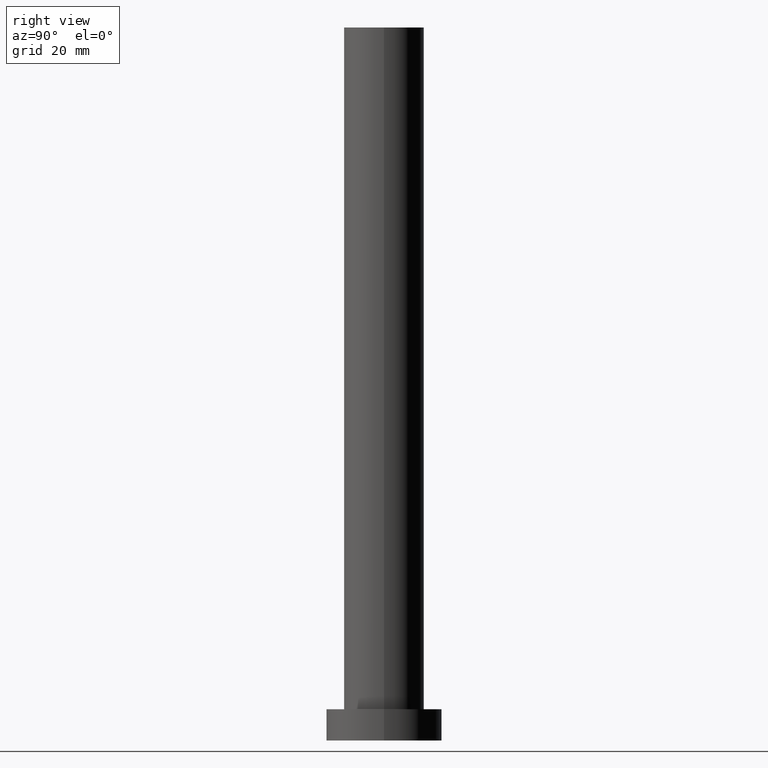
[diagram: clean part render]
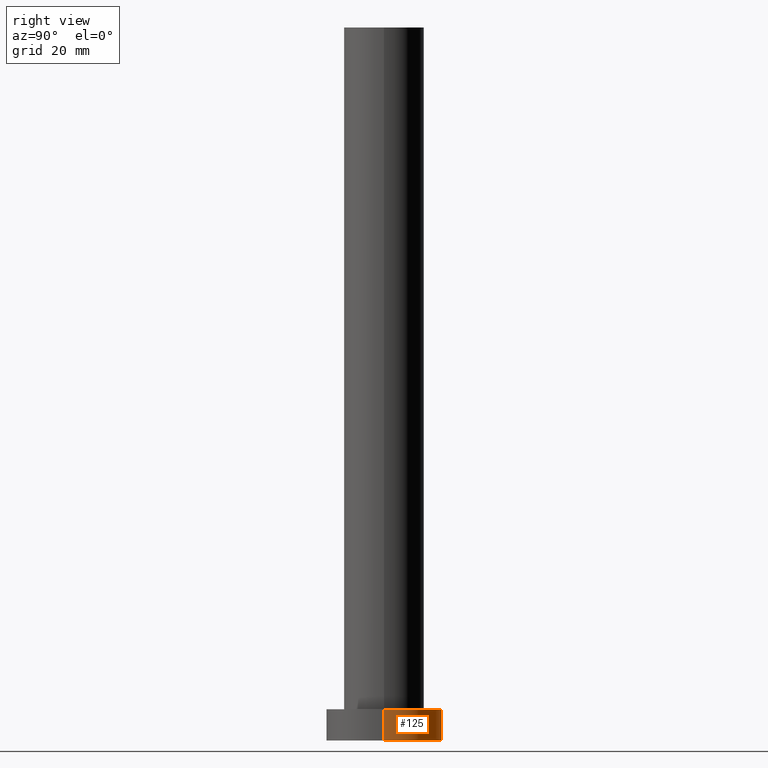
[diagram: same view with one face highlighted and labeled with its STEP entity id]
A machine part, right view. The second image highlights one B-rep face of the part: STEP entity #125.
In plain terms, the highlighted cylindrical surface (partial cylindrical patch) has radius 13 mm, axis along (-0, -0, -1).
Its self-contained STEP definition (entity closure, byte-faithful):
#5 = VECTOR ( 'NONE', #210, 1000.000000000000000 ) ;
#16 = AXIS2_PLACEMENT_3D ( 'NONE', #65, #119, #230 ) ;
#20 = CYLINDRICAL_SURFACE ( 'NONE', #149, 13.00000000000000178 ) ;
#22 = DIRECTION ( 'NONE',  ( 1.000000000000000000, 0.000000000000000000, 0.000000000000000000 ) ) ;
#37 = DIRECTION ( 'NONE',  ( -1.000000000000000000, 0.000000000000000000, 0.000000000000000000 ) ) ;
#38 = CARTESIAN_POINT ( 'NONE',  ( 13.00000000000000178, 1.592040838891559293E-15, 7.000000000000000000 ) ) ;
#65 = CARTESIAN_POINT ( 'NONE',  ( 0.000000000000000000, 0.000000000000000000, 7.000000000000000000 ) ) ;
#68 = VERTEX_POINT ( 'NONE', #237 ) ;
#74 = CARTESIAN_POINT ( 'NONE',  ( 0.000000000000000000, 0.000000000000000000, 7.000000000000000000 ) ) ;
#75 = ORIENTED_EDGE ( 'NONE', *, *, #107, .T. ) ;
#87 = VERTEX_POINT ( 'NONE', #38 ) ;
#88 = AXIS2_PLACEMENT_3D ( 'NONE', #90, #113, #22 ) ;
#90 = CARTESIAN_POINT ( 'NONE',  ( 0.000000000000000000, 0.000000000000000000, 0.000000000000000000 ) ) ;
#102 = VERTEX_POINT ( 'NONE', #199 ) ;
#107 = EDGE_CURVE ( 'NONE', #102, #68, #143, .T. ) ;
#113 = DIRECTION ( 'NONE',  ( 0.000000000000000000, 0.000000000000000000, 1.000000000000000000 ) ) ;
#119 = DIRECTION ( 'NONE',  ( 0.000000000000000000, 0.000000000000000000, 1.000000000000000000 ) ) ;
#125 = ADVANCED_FACE ( 'NONE', ( #178 ), #20, .T. ) ;
#128 = VERTEX_POINT ( 'NONE', #135 ) ;
#134 = VECTOR ( 'NONE', #222, 1000.000000000000000 ) ;
#135 = CARTESIAN_POINT ( 'NONE',  ( -13.00000000000000178, 0.000000000000000000, 7.000000000000000000 ) ) ;
#140 = EDGE_CURVE ( 'NONE', #128, #68, #159, .T. ) ;
#143 = CIRCLE ( 'NONE', #88, 13.00000000000000178 ) ;
#149 = AXIS2_PLACEMENT_3D ( 'NONE', #74, #220, #37 ) ;
#159 = LINE ( 'NONE', #242, #134 ) ;
#174 = CIRCLE ( 'NONE', #16, 13.00000000000000178 ) ;
#178 = FACE_OUTER_BOUND ( 'NONE', #182, .T. ) ;
#182 = EDGE_LOOP ( 'NONE', ( #211, #228, #75, #231 ) ) ;
#185 = CARTESIAN_POINT ( 'NONE',  ( 13.00000000000000178, 1.592040838891559293E-15, 7.000000000000000000 ) ) ;
#199 = CARTESIAN_POINT ( 'NONE',  ( 13.00000000000000178, 1.592040838891559293E-15, 0.000000000000000000 ) ) ;
#204 = LINE ( 'NONE', #185, #5 ) ;
#210 = DIRECTION ( 'NONE',  ( -0.000000000000000000, -0.000000000000000000, -1.000000000000000000 ) ) ;
#211 = ORIENTED_EDGE ( 'NONE', *, *, #229, .F. ) ;
#220 = DIRECTION ( 'NONE',  ( -0.000000000000000000, -0.000000000000000000, -1.000000000000000000 ) ) ;
#222 = DIRECTION ( 'NONE',  ( -0.000000000000000000, -0.000000000000000000, -1.000000000000000000 ) ) ;
#228 = ORIENTED_EDGE ( 'NONE', *, *, #234, .T. ) ;
#229 = EDGE_CURVE ( 'NONE', #87, #128, #174, .T. ) ;
#230 = DIRECTION ( 'NONE',  ( 1.000000000000000000, 0.000000000000000000, 0.000000000000000000 ) ) ;
#231 = ORIENTED_EDGE ( 'NONE', *, *, #140, .F. ) ;
#234 = EDGE_CURVE ( 'NONE', #87, #102, #204, .T. ) ;
#237 = CARTESIAN_POINT ( 'NONE',  ( -13.00000000000000178, 0.000000000000000000, 0.000000000000000000 ) ) ;
#242 = CARTESIAN_POINT ( 'NONE',  ( -13.00000000000000178, 0.000000000000000000, 7.000000000000000000 ) ) ;